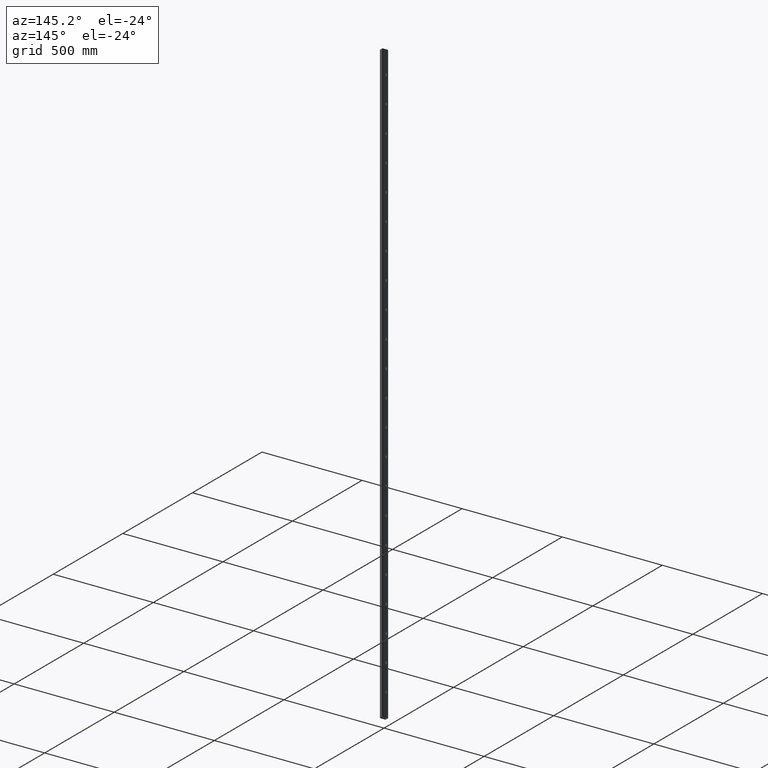
[diagram: clean part render]
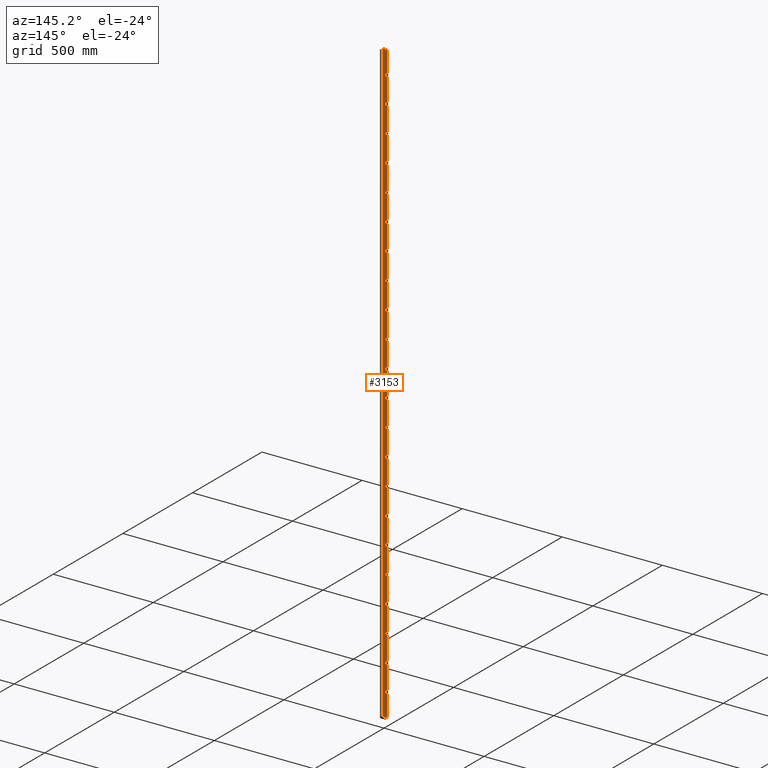
[diagram: same view with one face highlighted and labeled with its STEP entity id]
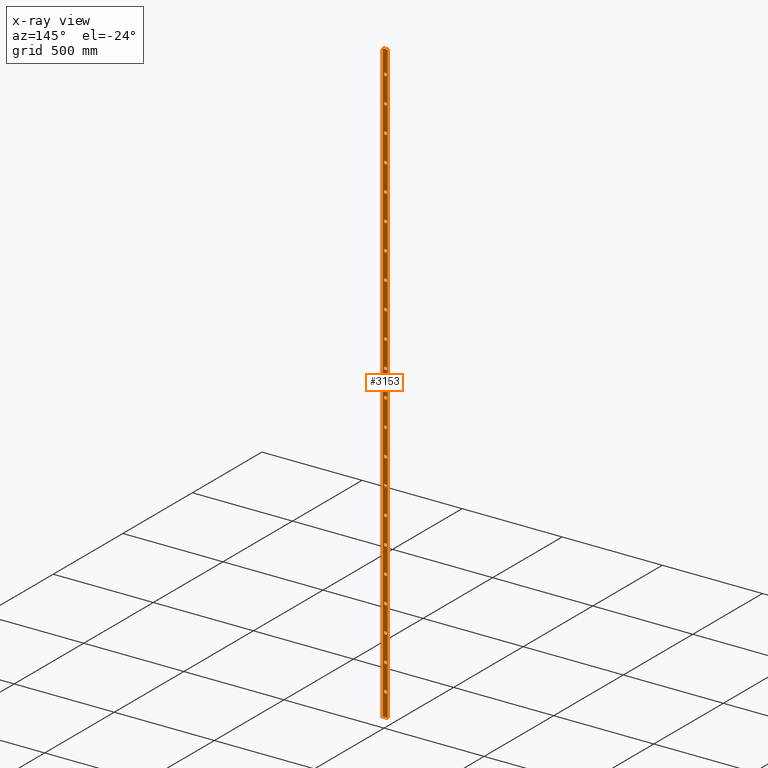
[diagram: x-ray of the same camera — body ghosted, the highlighted face saturated]
A machine part, auxiliary view. The second image highlights one B-rep face of the part: STEP entity #3153.
The next image is the same camera in x-ray: the body ghosted, the highlighted face saturated — about 0% of this face is hidden behind the body in this view.
In plain terms, the highlighted planar face has unit normal (0, -1, 0).
Its self-contained STEP definition (entity closure, byte-faithful):
#21 = ORIENTED_EDGE ( 'NONE', *, *, #8501, .F. ) ;
#57 = VECTOR ( 'NONE', #7857, 1000.000000000000000 ) ;
#121 = EDGE_CURVE ( 'NONE', #2713, #17872, #16919, .T. ) ;
#126 = VERTEX_POINT ( 'NONE', #18658 ) ;
#139 = DIRECTION ( 'NONE',  ( -1.334402673828323446E-16, -0.000000000000000000, -1.000000000000000000 ) ) ;
#174 = EDGE_CURVE ( 'NONE', #8502, #15909, #14428, .T. ) ;
#201 = EDGE_CURVE ( 'NONE', #6277, #854, #13665, .T. ) ;
#220 = ORIENTED_EDGE ( 'NONE', *, *, #7162, .F. ) ;
#228 = LINE ( 'NONE', #6487, #20042 ) ;
#231 = EDGE_CURVE ( 'NONE', #10938, #12329, #8500, .T. ) ;
#243 = EDGE_CURVE ( 'NONE', #11463, #7282, #15924, .T. ) ;
#246 = DIRECTION ( 'NONE',  ( -7.439294906592903578E-14, 0.000000000000000000, 1.000000000000000000 ) ) ;
#323 = VECTOR ( 'NONE', #16814, 1000.000000000000000 ) ;
#357 = EDGE_CURVE ( 'NONE', #16294, #7814, #7241, .T. ) ;
#449 = CARTESIAN_POINT ( 'NONE',  ( 6.499999999995852207, 10.00000000000000178, 204.4999999999550369 ) ) ;
#465 = ORIENTED_EDGE ( 'NONE', *, *, #6332, .F. ) ;
#494 = CARTESIAN_POINT ( 'NONE',  ( 6.500000000003888445, 10.00000000000000178, 983.4999999999998863 ) ) ;
#521 = VECTOR ( 'NONE', #16241, 1000.000000000000000 ) ;
#557 = CARTESIAN_POINT ( 'NONE',  ( -6.499999999996471267, 10.00000000000000178, 864.4999999999997726 ) ) ;
#560 = LINE ( 'NONE', #6180, #6774 ) ;
#583 = VECTOR ( 'NONE', #9760, 1000.000000000000000 ) ;
#669 = VECTOR ( 'NONE', #20494, 1000.000000000000000 ) ;
#675 = ORIENTED_EDGE ( 'NONE', *, *, #4626, .F. ) ;
#751 = VECTOR ( 'NONE', #13379, 1000.000000000000000 ) ;
#789 = LINE ( 'NONE', #18032, #6760 ) ;
#842 = ORIENTED_EDGE ( 'NONE', *, *, #18977, .F. ) ;
#854 = VERTEX_POINT ( 'NONE', #3740 ) ;
#873 = ORIENTED_EDGE ( 'NONE', *, *, #18231, .F. ) ;
#964 = CARTESIAN_POINT ( 'NONE',  ( -6.499999999995550226, 10.00000000000000178, 1128.499999999999773 ) ) ;
#965 = CARTESIAN_POINT ( 'NONE',  ( -6.500000000006407319, 10.00000000000000178, -732.5000000000841283 ) ) ;
#981 = VECTOR ( 'NONE', #16211, 1000.000000000000000 ) ;
#994 = CARTESIAN_POINT ( 'NONE',  ( -6.500000000008756551, 10.00000000000000178, -1115.500000000100954 ) ) ;
#1019 = LINE ( 'NONE', #11818, #16662 ) ;
#1043 = VECTOR ( 'NONE', #9373, 1000.000000000000000 ) ;
#1044 = EDGE_CURVE ( 'NONE', #1782, #10938, #10919, .T. ) ;
#1063 = EDGE_CURVE ( 'NONE', #15936, #7998, #19379, .T. ) ;
#1223 = LINE ( 'NONE', #965, #4448 ) ;
#1239 = LINE ( 'NONE', #7474, #11896 ) ;
#1249 = CARTESIAN_POINT ( 'NONE',  ( -6.500000000003180567, 10.00000000000000178, 191.4999999999551505 ) ) ;
#1258 = DIRECTION ( 'NONE',  ( 1.000000000000000000, 0.000000000000000000, 0.000000000000000000 ) ) ;
#1310 = CARTESIAN_POINT ( 'NONE',  ( -6.500000000005991652, 10.00000000000000178, -323.5000000000674163 ) ) ;
#1341 = DIRECTION ( 'NONE',  ( 1.000000000000000000, 0.000000000000000000, 0.000000000000000000 ) ) ;
#1400 = ORIENTED_EDGE ( 'NONE', *, *, #19971, .F. ) ;
#1443 = ORIENTED_EDGE ( 'NONE', *, *, #16439, .T. ) ;
#1447 = CARTESIAN_POINT ( 'NONE',  ( 6.499999999996774136, 10.00000000000000178, 468.4999999999664055 ) ) ;
#1529 = ORIENTED_EDGE ( 'NONE', *, *, #10089, .F. ) ;
#1548 = ORIENTED_EDGE ( 'NONE', *, *, #3315, .F. ) ;
#1568 = ORIENTED_EDGE ( 'NONE', *, *, #231, .F. ) ;
#1586 = DIRECTION ( 'NONE',  ( -1.000000000000000000, -0.000000000000000000, -0.000000000000000000 ) ) ;
#1589 = CARTESIAN_POINT ( 'NONE',  ( 6.500000000003427481, 10.00000000000000178, 851.4999999999998863 ) ) ;
#1603 = CARTESIAN_POINT ( 'NONE',  ( 6.499999999994881428, 10.00000000000000178, 191.4999999999551505 ) ) ;
#1604 = CARTESIAN_POINT ( 'NONE',  ( -6.500000000005024425, 10.00000000000000178, -336.5000000000673026 ) ) ;
#1616 = VECTOR ( 'NONE', #15195, 1000.000000000000000 ) ;
#1653 = CARTESIAN_POINT ( 'NONE',  ( 11.99999999999998934, 10.00000000000000178, 1500.000000000000000 ) ) ;
#1662 = CARTESIAN_POINT ( 'NONE',  ( 6.499999999994884980, 10.00000000000000178, 191.4999999999551505 ) ) ;
#1672 = CARTESIAN_POINT ( 'NONE',  ( -6.500000000004102496, 10.00000000000000178, -72.50000000005596235 ) ) ;
#1746 = ORIENTED_EDGE ( 'NONE', *, *, #12475, .F. ) ;
#1752 = DIRECTION ( 'NONE',  ( -7.439294906592903578E-14, -0.000000000000000000, -1.000000000000000000 ) ) ;
#1782 = VERTEX_POINT ( 'NONE', #15887 ) ;
#1805 = VECTOR ( 'NONE', #13346, 1000.000000000000000 ) ;
#1832 = CARTESIAN_POINT ( 'NONE',  ( 6.499999999992120081, 10.00000000000000178, -600.5000000000784439 ) ) ;
#1833 = VECTOR ( 'NONE', #16167, 1000.000000000000000 ) ;
#1875 = VERTEX_POINT ( 'NONE', #12967 ) ;
#1901 = EDGE_CURVE ( 'NONE', #2367, #18498, #4802, .T. ) ;
#1957 = CARTESIAN_POINT ( 'NONE',  ( -6.500000000006407319, 10.00000000000000178, -732.5000000000841283 ) ) ;
#2015 = VECTOR ( 'NONE', #16146, 1000.000000000000000 ) ;
#2059 = VERTEX_POINT ( 'NONE', #12188 ) ;
#2064 = FACE_BOUND ( 'NONE', #19463, .T. ) ;
#2102 = DIRECTION ( 'NONE',  ( -1.334402673828323446E-16, -0.000000000000000000, -1.000000000000000000 ) ) ;
#2126 = EDGE_CURVE ( 'NONE', #19678, #8179, #560, .T. ) ;
#2167 = CARTESIAN_POINT ( 'NONE',  ( -6.499999999997393196, 10.00000000000000178, 600.4999999999997726 ) ) ;
#2178 = VERTEX_POINT ( 'NONE', #6725 ) ;
#2231 = EDGE_CURVE ( 'NONE', #3026, #6277, #8508, .T. ) ;
#2247 = LINE ( 'NONE', #1310, #18637 ) ;
#2270 = VERTEX_POINT ( 'NONE', #17635 ) ;
#2288 = FACE_BOUND ( 'NONE', #11215, .T. ) ;
#2299 = EDGE_CURVE ( 'NONE', #13605, #10068, #6008, .T. ) ;
#2322 = DIRECTION ( 'NONE',  ( -1.000000000000000000, -0.000000000000000000, -0.000000000000000000 ) ) ;
#2339 = CARTESIAN_POINT ( 'NONE',  ( 6.500000000002965628, 10.00000000000000178, 719.4999999999998863 ) ) ;
#2364 = DIRECTION ( 'NONE',  ( -7.439294906592903578E-14, 0.000000000000000000, 1.000000000000000000 ) ) ;
#2367 = VERTEX_POINT ( 'NONE', #11827 ) ;
#2409 = VECTOR ( 'NONE', #11583, 1000.000000000000000 ) ;
#2440 = EDGE_CURVE ( 'NONE', #14310, #126, #16926, .T. ) ;
#2463 = CARTESIAN_POINT ( 'NONE',  ( -12.00000000000001421, 10.00000000000000178, 1500.000000000000000 ) ) ;
#2500 = LINE ( 'NONE', #12537, #5523 ) ;
#2519 = FACE_BOUND ( 'NONE', #17161, .T. ) ;
#2536 = DIRECTION ( 'NONE',  ( -1.000000000000000000, -0.000000000000000000, -0.000000000000000000 ) ) ;
#2545 = CARTESIAN_POINT ( 'NONE',  ( 6.499999999990321520, 10.00000000000000178, -1379.500000000112323 ) ) ;
#2647 = EDGE_CURVE ( 'NONE', #16515, #18360, #17173, .T. ) ;
#2690 = LINE ( 'NONE', #13476, #19339 ) ;
#2713 = VERTEX_POINT ( 'NONE', #9416 ) ;
#2761 = FACE_BOUND ( 'NONE', #16245, .T. ) ;
#2791 = ORIENTED_EDGE ( 'NONE', *, *, #8056, .F. ) ;
#2854 = LINE ( 'NONE', #7921, #15760 ) ;
#2856 = CARTESIAN_POINT ( 'NONE',  ( 6.500000000002507328, 10.00000000000000178, 600.4999999999997726 ) ) ;
#2865 = DIRECTION ( 'NONE',  ( -7.439294906592903578E-14, -0.000000000000000000, -1.000000000000000000 ) ) ;
#2882 = VERTEX_POINT ( 'NONE', #8352 ) ;
#2919 = EDGE_CURVE ( 'NONE', #4087, #10482, #9791, .T. ) ;
#2985 = DIRECTION ( 'NONE',  ( -7.439294906592903578E-14, -0.000000000000000000, -1.000000000000000000 ) ) ;
#3001 = EDGE_LOOP ( 'NONE', ( #1443, #6796, #15563, #5588 ) ) ;
#3012 = LINE ( 'NONE', #17686, #17934 ) ;
#3014 = CARTESIAN_POINT ( 'NONE',  ( -6.500000000007789325, 10.00000000000000178, -1128.500000000100954 ) ) ;
#3026 = VERTEX_POINT ( 'NONE', #2167 ) ;
#3040 = CARTESIAN_POINT ( 'NONE',  ( 6.499999999989815258, 10.00000000000000178, -1260.500000000106866 ) ) ;
#3153 = ADVANCED_FACE ( 'NONE', ( #2761, #8037, #2288, #17699, #3285, #2519, #7021, #19180, #2064, #10714, #17453, #5522, #14183, #13423, #13195, #15940, #14927, #18936, #14698, #10488, #6013, #8991, #11706 ), #11974, .F. ) ;
#3154 = VERTEX_POINT ( 'NONE', #16366 ) ;
#3176 = CARTESIAN_POINT ( 'NONE',  ( -6.500000000005529799, 10.00000000000000178, -191.5000000000617320 ) ) ;
#3189 = VECTOR ( 'NONE', #8959, 1000.000000000000000 ) ;
#3204 = CARTESIAN_POINT ( 'NONE',  ( -6.499999999996933120, 10.00000000000000178, 732.4999999999997726 ) ) ;
#3220 = VECTOR ( 'NONE', #19985, 1000.000000000000000 ) ;
#3238 = VECTOR ( 'NONE', #9673, 1000.000000000000000 ) ;
#3241 = VERTEX_POINT ( 'NONE', #4991 ) ;
#3257 = LINE ( 'NONE', #14665, #5262 ) ;
#3285 = FACE_BOUND ( 'NONE', #6841, .T. ) ;
#3290 = VECTOR ( 'NONE', #19471, 1000.000000000000000 ) ;
#3315 = EDGE_CURVE ( 'NONE', #9530, #9576, #7491, .T. ) ;
#3331 = CARTESIAN_POINT ( 'NONE',  ( -6.500000000006912693, 10.00000000000000178, -587.5000000000785576 ) ) ;
#3333 = CARTESIAN_POINT ( 'NONE',  ( -6.500000000009677592, 10.00000000000000178, -1379.500000000112323 ) ) ;
#3353 = CARTESIAN_POINT ( 'NONE',  ( 6.500000000005268674, 10.00000000000000178, 1379.500000000000000 ) ) ;
#3368 = DIRECTION ( 'NONE',  ( 1.000000000000000000, 0.000000000000000000, 0.000000000000000000 ) ) ;
#3369 = LINE ( 'NONE', #1653, #9319 ) ;
#3378 = EDGE_CURVE ( 'NONE', #11782, #6314, #3257, .T. ) ;
#3390 = EDGE_CURVE ( 'NONE', #13767, #10246, #789, .T. ) ;
#3426 = LINE ( 'NONE', #3991, #12563 ) ;
#3468 = EDGE_CURVE ( 'NONE', #2059, #5447, #1019, .T. ) ;
#3517 = ORIENTED_EDGE ( 'NONE', *, *, #20464, .F. ) ;
#3521 = ORIENTED_EDGE ( 'NONE', *, *, #15245, .F. ) ;
#3621 = VERTEX_POINT ( 'NONE', #994 ) ;
#3628 = VERTEX_POINT ( 'NONE', #9131 ) ;
#3640 = EDGE_CURVE ( 'NONE', #15355, #1875, #4004, .T. ) ;
#3665 = VECTOR ( 'NONE', #9297, 1000.000000000000000 ) ;
#3685 = LINE ( 'NONE', #12077, #13331 ) ;
#3697 = VERTEX_POINT ( 'NONE', #4378 ) ;
#3726 = ORIENTED_EDGE ( 'NONE', *, *, #2440, .F. ) ;
#3740 = CARTESIAN_POINT ( 'NONE',  ( 6.500000000002503775, 10.00000000000000178, 587.4999999999998863 ) ) ;
#3814 = CARTESIAN_POINT ( 'NONE',  ( 6.499999999990273558, 10.00000000000000178, -1128.500000000101181 ) ) ;
#3847 = CARTESIAN_POINT ( 'NONE',  ( -6.500000000007373657, 10.00000000000000178, -719.5000000000841283 ) ) ;
#3850 = EDGE_CURVE ( 'NONE', #9897, #6390, #10217, .T. ) ;
#3886 = CARTESIAN_POINT ( 'NONE',  ( 6.499999999989354293, 10.00000000000000178, -1392.500000000112095 ) ) ;
#3913 = AXIS2_PLACEMENT_3D ( 'NONE', #2463, #16983, #18453 ) ;
#3935 = EDGE_CURVE ( 'NONE', #7282, #15936, #4736, .T. ) ;
#3970 = CARTESIAN_POINT ( 'NONE',  ( 6.500000000005272227, 10.00000000000000178, 1392.499999999999773 ) ) ;
#3976 = VERTEX_POINT ( 'NONE', #16363 ) ;
#3991 = CARTESIAN_POINT ( 'NONE',  ( -6.499999999995552002, 10.00000000000000178, 1115.500000000000000 ) ) ;
#4004 = LINE ( 'NONE', #6074, #15155 ) ;
#4087 = VERTEX_POINT ( 'NONE', #16699 ) ;
#4121 = LINE ( 'NONE', #4893, #8836 ) ;
#4135 = DIRECTION ( 'NONE',  ( 1.334402673828323446E-16, 0.000000000000000000, 1.000000000000000000 ) ) ;
#4162 = DIRECTION ( 'NONE',  ( -1.000000000000000000, -0.000000000000000000, -0.000000000000000000 ) ) ;
#4235 = ORIENTED_EDGE ( 'NONE', *, *, #6452, .F. ) ;
#4238 = VERTEX_POINT ( 'NONE', #18025 ) ;
#4256 = EDGE_LOOP ( 'NONE', ( #465, #17819, #7668, #11643 ) ) ;
#4257 = EDGE_CURVE ( 'NONE', #5788, #3154, #5245, .T. ) ;
#4259 = VECTOR ( 'NONE', #9434, 1000.000000000000000 ) ;
#4282 = CARTESIAN_POINT ( 'NONE',  ( -6.500000000006451728, 10.00000000000000178, -455.5000000000728733 ) ) ;
#4286 = LINE ( 'NONE', #13771, #5292 ) ;
#4332 = ORIENTED_EDGE ( 'NONE', *, *, #13790, .F. ) ;
#4378 = CARTESIAN_POINT ( 'NONE',  ( -6.500000000008295586, 10.00000000000000178, -983.5000000000954969 ) ) ;
#4399 = VECTOR ( 'NONE', #10261, 1000.000000000000000 ) ;
#4448 = VECTOR ( 'NONE', #4162, 1000.000000000000000 ) ;
#4506 = VECTOR ( 'NONE', #139, 1000.000000000000000 ) ;
#4527 = CARTESIAN_POINT ( 'NONE',  ( 6.500000000004812151, 10.00000000000000178, 1260.500000000000000 ) ) ;
#4568 = DIRECTION ( 'NONE',  ( -7.439294906592903578E-14, -0.000000000000000000, -1.000000000000000000 ) ) ;
#4570 = EDGE_CURVE ( 'NONE', #18972, #5519, #6720, .T. ) ;
#4576 = VECTOR ( 'NONE', #9647, 1000.000000000000000 ) ;
#4591 = CARTESIAN_POINT ( 'NONE',  ( -6.500000000004147793, 10.00000000000000178, 204.4999999999550369 ) ) ;
#4606 = CARTESIAN_POINT ( 'NONE',  ( -6.499999999996010303, 10.00000000000000178, 996.4999999999998863 ) ) ;
#4626 = EDGE_CURVE ( 'NONE', #15568, #14004, #1239, .T. ) ;
#4644 = DIRECTION ( 'NONE',  ( 1.000000000000000000, 0.000000000000000000, 0.000000000000000000 ) ) ;
#4676 = LINE ( 'NONE', #11107, #6182 ) ;
#4678 = LINE ( 'NONE', #18085, #6921 ) ;
#4712 = CARTESIAN_POINT ( 'NONE',  ( -6.499999999996012079, 10.00000000000000178, 983.4999999999998863 ) ) ;
#4736 = LINE ( 'NONE', #494, #521 ) ;
#4749 = EDGE_LOOP ( 'NONE', ( #18228, #675, #19033, #10819 ) ) ;
#4756 = EDGE_CURVE ( 'NONE', #13240, #13669, #17643, .T. ) ;
#4764 = DIRECTION ( 'NONE',  ( -1.000000000000000000, -0.000000000000000000, -0.000000000000000000 ) ) ;
#4766 = ORIENTED_EDGE ( 'NONE', *, *, #7150, .F. ) ;
#4802 = LINE ( 'NONE', #1832, #583 ) ;
#4818 = DIRECTION ( 'NONE',  ( -1.000000000000000000, -0.000000000000000000, -0.000000000000000000 ) ) ;
#4826 = VERTEX_POINT ( 'NONE', #5590 ) ;
#4827 = ORIENTED_EDGE ( 'NONE', *, *, #4570, .F. ) ;
#4864 = DIRECTION ( 'NONE',  ( -1.000000000000000000, -0.000000000000000000, -0.000000000000000000 ) ) ;
#4868 = CARTESIAN_POINT ( 'NONE',  ( -6.500000000002258638, 10.00000000000000178, 455.4999999999664624 ) ) ;
#4893 = CARTESIAN_POINT ( 'NONE',  ( -6.500000000005945466, 10.00000000000000178, -600.5000000000784439 ) ) ;
#4914 = CARTESIAN_POINT ( 'NONE',  ( 6.500000000004810374, 10.00000000000000178, 1247.500000000000000 ) ) ;
#4960 = LINE ( 'NONE', #19364, #18109 ) ;
#4964 = CARTESIAN_POINT ( 'NONE',  ( -6.500000000004608758, 10.00000000000000178, 72.49999999994938094 ) ) ;
#4991 = CARTESIAN_POINT ( 'NONE',  ( -6.499999999996933120, 10.00000000000000178, 732.4999999999997726 ) ) ;
#5005 = ORIENTED_EDGE ( 'NONE', *, *, #8131, .F. ) ;
#5007 = CARTESIAN_POINT ( 'NONE',  ( 6.499999999989350741, 10.00000000000000178, -1392.500000000111868 ) ) ;
#5088 = CARTESIAN_POINT ( 'NONE',  ( 6.499999999995342392, 10.00000000000000178, 323.4999999999608349 ) ) ;
#5144 = LINE ( 'NONE', #4591, #17554 ) ;
#5175 = DIRECTION ( 'NONE',  ( -1.334402673828323446E-16, -0.000000000000000000, -1.000000000000000000 ) ) ;
#5188 = VERTEX_POINT ( 'NONE', #3333 ) ;
#5214 = CARTESIAN_POINT ( 'NONE',  ( -6.500000000003225864, 10.00000000000000178, 468.4999999999664055 ) ) ;
#5238 = EDGE_CURVE ( 'NONE', #6314, #17046, #8204, .T. ) ;
#5245 = LINE ( 'NONE', #10240, #15132 ) ;
#5262 = VECTOR ( 'NONE', #11550, 1000.000000000000000 ) ;
#5292 = VECTOR ( 'NONE', #16985, 1000.000000000000000 ) ;
#5314 = EDGE_CURVE ( 'NONE', #3628, #2882, #16850, .T. ) ;
#5364 = CARTESIAN_POINT ( 'NONE',  ( -6.500000000008710366, 10.00000000000000178, -1392.500000000112095 ) ) ;
#5447 = VERTEX_POINT ( 'NONE', #4527 ) ;
#5464 = EDGE_CURVE ( 'NONE', #3976, #16846, #13118, .T. ) ;
#5519 = VERTEX_POINT ( 'NONE', #13363 ) ;
#5522 = FACE_BOUND ( 'NONE', #16941, .T. ) ;
#5523 = VECTOR ( 'NONE', #14202, 1000.000000000000000 ) ;
#5588 = ORIENTED_EDGE ( 'NONE', *, *, #19192, .T. ) ;
#5590 = CARTESIAN_POINT ( 'NONE',  ( 6.499999999991704414, 10.00000000000000178, -983.5000000000954969 ) ) ;
#5659 = DIRECTION ( 'NONE',  ( 1.000000000000000000, 0.000000000000000000, 0.000000000000000000 ) ) ;
#5671 = VERTEX_POINT ( 'NONE', #12439 ) ;
#5769 = EDGE_CURVE ( 'NONE', #126, #8839, #4676, .T. ) ;
#5788 = VERTEX_POINT ( 'NONE', #12678 ) ;
#5789 = CARTESIAN_POINT ( 'NONE',  ( 6.500000000004345857, 10.00000000000000178, 1115.500000000000000 ) ) ;
#5820 = ORIENTED_EDGE ( 'NONE', *, *, #174, .F. ) ;
#5851 = LINE ( 'NONE', #6040, #13755 ) ;
#5852 = DIRECTION ( 'NONE',  ( 1.000000000000000000, 0.000000000000000000, 0.000000000000000000 ) ) ;
#5881 = DIRECTION ( 'NONE',  ( -7.439294906592903578E-14, -0.000000000000000000, -1.000000000000000000 ) ) ;
#5966 = CARTESIAN_POINT ( 'NONE',  ( -12.00000000000001421, 10.00000000000000178, 1500.000000000000000 ) ) ;
#5969 = EDGE_CURVE ( 'NONE', #18907, #16515, #4960, .T. ) ;
#5972 = DIRECTION ( 'NONE',  ( -1.000000000000000000, -0.000000000000000000, -0.000000000000000000 ) ) ;
#5997 = CARTESIAN_POINT ( 'NONE',  ( 6.500000000003426592, 10.00000000000000178, 851.4999999999998863 ) ) ;
#6003 = VERTEX_POINT ( 'NONE', #14116 ) ;
#6008 = LINE ( 'NONE', #17704, #1805 ) ;
#6013 = FACE_BOUND ( 'NONE', #20415, .T. ) ;
#6040 = CARTESIAN_POINT ( 'NONE',  ( 6.499999999990737187, 10.00000000000000178, -996.5000000000953833 ) ) ;
#6044 = EDGE_CURVE ( 'NONE', #13012, #17887, #13577, .T. ) ;
#6074 = CARTESIAN_POINT ( 'NONE',  ( 6.499999999994423128, 10.00000000000000178, 59.49999999994948041 ) ) ;
#6111 = EDGE_CURVE ( 'NONE', #20122, #14680, #6685, .T. ) ;
#6180 = CARTESIAN_POINT ( 'NONE',  ( -6.499999999994630073, 10.00000000000000178, 1379.500000000000000 ) ) ;
#6182 = VECTOR ( 'NONE', #9684, 1000.000000000000000 ) ;
#6184 = EDGE_CURVE ( 'NONE', #5519, #3241, #9904, .T. ) ;
#6203 = VECTOR ( 'NONE', #14753, 1000.000000000000000 ) ;
#6264 = EDGE_CURVE ( 'NONE', #6988, #9530, #3685, .T. ) ;
#6277 = VERTEX_POINT ( 'NONE', #2856 ) ;
#6279 = ORIENTED_EDGE ( 'NONE', *, *, #13269, .F. ) ;
#6314 = VERTEX_POINT ( 'NONE', #7603 ) ;
#6330 = DIRECTION ( 'NONE',  ( -7.439294906592903578E-14, -0.000000000000000000, -1.000000000000000000 ) ) ;
#6332 = EDGE_CURVE ( 'NONE', #854, #6443, #228, .T. ) ;
#6390 = VERTEX_POINT ( 'NONE', #4964 ) ;
#6443 = VERTEX_POINT ( 'NONE', #12902 ) ;
#6452 = EDGE_CURVE ( 'NONE', #7029, #20122, #9144, .T. ) ;
#6487 = CARTESIAN_POINT ( 'NONE',  ( -6.499999999997394973, 10.00000000000000178, 587.4999999999998863 ) ) ;
#6559 = EDGE_CURVE ( 'NONE', #18667, #17296, #18583, .T. ) ;
#6590 = VECTOR ( 'NONE', #1341, 1000.000000000000000 ) ;
#6593 = ORIENTED_EDGE ( 'NONE', *, *, #3390, .F. ) ;
#6610 = ORIENTED_EDGE ( 'NONE', *, *, #19566, .F. ) ;
#6655 = ORIENTED_EDGE ( 'NONE', *, *, #7890, .F. ) ;
#6685 = LINE ( 'NONE', #7536, #13846 ) ;
#6694 = CARTESIAN_POINT ( 'NONE',  ( -6.500000000009677592, 10.00000000000000178, -1379.500000000112323 ) ) ;
#6711 = DIRECTION ( 'NONE',  ( -1.000000000000000000, -0.000000000000000000, -0.000000000000000000 ) ) ;
#6720 = LINE ( 'NONE', #13317, #751 ) ;
#6725 = CARTESIAN_POINT ( 'NONE',  ( 6.499999999993500310, 10.00000000000000178, -204.5000000000616183 ) ) ;
#6744 = CARTESIAN_POINT ( 'NONE',  ( -6.500000000008250289, 10.00000000000000178, -1260.500000000106866 ) ) ;
#6760 = VECTOR ( 'NONE', #9865, 1000.000000000000000 ) ;
#6774 = VECTOR ( 'NONE', #8067, 1000.000000000000000 ) ;
#6786 = ORIENTED_EDGE ( 'NONE', *, *, #3378, .F. ) ;
#6789 = ORIENTED_EDGE ( 'NONE', *, *, #6044, .F. ) ;
#6796 = ORIENTED_EDGE ( 'NONE', *, *, #2299, .F. ) ;
#6822 = CARTESIAN_POINT ( 'NONE',  ( -6.499999999995552002, 10.00000000000000178, 1115.500000000000000 ) ) ;
#6841 = EDGE_LOOP ( 'NONE', ( #8846, #1548, #19832, #4332 ) ) ;
#6917 = LINE ( 'NONE', #18793, #3665 ) ;
#6921 = VECTOR ( 'NONE', #6711, 1000.000000000000000 ) ;
#6970 = EDGE_CURVE ( 'NONE', #17872, #4087, #13807, .T. ) ;
#6988 = VERTEX_POINT ( 'NONE', #557 ) ;
#7021 = FACE_BOUND ( 'NONE', #4256, .T. ) ;
#7029 = VERTEX_POINT ( 'NONE', #18445 ) ;
#7071 = CARTESIAN_POINT ( 'NONE',  ( 6.500000000004350298, 10.00000000000000178, 1128.499999999999773 ) ) ;
#7137 = CARTESIAN_POINT ( 'NONE',  ( -6.500000000005991652, 10.00000000000000178, -323.5000000000674163 ) ) ;
#7150 = EDGE_CURVE ( 'NONE', #8179, #13767, #17062, .T. ) ;
#7162 = EDGE_CURVE ( 'NONE', #3154, #18022, #8400, .T. ) ;
#7170 = ORIENTED_EDGE ( 'NONE', *, *, #3850, .F. ) ;
#7212 = VECTOR ( 'NONE', #15640, 1000.000000000000000 ) ;
#7232 = VECTOR ( 'NONE', #20307, 1000.000000000000000 ) ;
#7241 = LINE ( 'NONE', #1672, #19147 ) ;
#7252 = LINE ( 'NONE', #15027, #14159 ) ;
#7257 = CARTESIAN_POINT ( 'NONE',  ( -6.499999999996473043, 10.00000000000000178, 851.4999999999998863 ) ) ;
#7282 = VERTEX_POINT ( 'NONE', #9794 ) ;
#7293 = DIRECTION ( 'NONE',  ( 1.000000000000000000, 0.000000000000000000, 0.000000000000000000 ) ) ;
#7318 = ORIENTED_EDGE ( 'NONE', *, *, #13525, .F. ) ;
#7346 = VECTOR ( 'NONE', #16849, 1000.000000000000000 ) ;
#7391 = CARTESIAN_POINT ( 'NONE',  ( -6.499999999996934008, 10.00000000000000178, 719.4999999999998863 ) ) ;
#7393 = CARTESIAN_POINT ( 'NONE',  ( -6.500000000006407319, 10.00000000000000178, -732.5000000000841283 ) ) ;
#7408 = DIRECTION ( 'NONE',  ( 1.000000000000000000, 0.000000000000000000, 0.000000000000000000 ) ) ;
#7417 = CARTESIAN_POINT ( 'NONE',  ( -6.499999999995550226, 10.00000000000000178, 1128.499999999999773 ) ) ;
#7418 = LINE ( 'NONE', #10044, #3189 ) ;
#7461 = CARTESIAN_POINT ( 'NONE',  ( -6.500000000007789325, 10.00000000000000178, -1128.500000000100954 ) ) ;
#7474 = CARTESIAN_POINT ( 'NONE',  ( 6.499999999991658228, 10.00000000000000178, -732.5000000000841283 ) ) ;
#7491 = LINE ( 'NONE', #1589, #4506 ) ;
#7501 = VECTOR ( 'NONE', #13976, 1000.000000000000000 ) ;
#7536 = CARTESIAN_POINT ( 'NONE',  ( 6.499999999995345057, 10.00000000000000178, 323.4999999999608349 ) ) ;
#7552 = LINE ( 'NONE', #7657, #17221 ) ;
#7565 = VERTEX_POINT ( 'NONE', #14225 ) ;
#7594 = CARTESIAN_POINT ( 'NONE',  ( 6.499999999992625455, 10.00000000000000178, -719.5000000000841283 ) ) ;
#7603 = CARTESIAN_POINT ( 'NONE',  ( 6.499999999993039346, 10.00000000000000178, -336.5000000000673026 ) ) ;
#7657 = CARTESIAN_POINT ( 'NONE',  ( -6.499999999996012079, 10.00000000000000178, 983.4999999999998863 ) ) ;
#7660 = LINE ( 'NONE', #12052, #13852 ) ;
#7668 = ORIENTED_EDGE ( 'NONE', *, *, #2231, .F. ) ;
#7728 = VERTEX_POINT ( 'NONE', #449 ) ;
#7791 = ORIENTED_EDGE ( 'NONE', *, *, #19287, .F. ) ;
#7814 = VERTEX_POINT ( 'NONE', #19822 ) ;
#7829 = VERTEX_POINT ( 'NONE', #14980 ) ;
#7857 = DIRECTION ( 'NONE',  ( 1.000000000000000000, 0.000000000000000000, 0.000000000000000000 ) ) ;
#7890 = EDGE_CURVE ( 'NONE', #13450, #18907, #19278, .T. ) ;
#7921 = CARTESIAN_POINT ( 'NONE',  ( -6.500000000004102496, 10.00000000000000178, -72.50000000005596235 ) ) ;
#7978 = VECTOR ( 'NONE', #8259, 1000.000000000000000 ) ;
#7980 = VERTEX_POINT ( 'NONE', #9378 ) ;
#7998 = VERTEX_POINT ( 'NONE', #4712 ) ;
#8028 = ORIENTED_EDGE ( 'NONE', *, *, #14866, .F. ) ;
#8037 = FACE_BOUND ( 'NONE', #14861, .T. ) ;
#8045 = ORIENTED_EDGE ( 'NONE', *, *, #17843, .F. ) ;
#8056 = EDGE_CURVE ( 'NONE', #17046, #19858, #8129, .T. ) ;
#8065 = DIRECTION ( 'NONE',  ( 1.000000000000000000, 0.000000000000000000, 0.000000000000000000 ) ) ;
#8067 = DIRECTION ( 'NONE',  ( 1.334402673828323446E-16, 0.000000000000000000, 1.000000000000000000 ) ) ;
#8129 = LINE ( 'NONE', #14549, #17806 ) ;
#8131 = EDGE_CURVE ( 'NONE', #10482, #2713, #15532, .T. ) ;
#8135 = LINE ( 'NONE', #3014, #14545 ) ;
#8179 = VERTEX_POINT ( 'NONE', #15040 ) ;
#8198 = CARTESIAN_POINT ( 'NONE',  ( -6.500000000002719602, 10.00000000000000178, 323.4999999999608349 ) ) ;
#8204 = LINE ( 'NONE', #1604, #20572 ) ;
#8218 = VECTOR ( 'NONE', #2536, 1000.000000000000000 ) ;
#8224 = EDGE_CURVE ( 'NONE', #18022, #7829, #12300, .T. ) ;
#8259 = DIRECTION ( 'NONE',  ( -7.439294906592903578E-14, 0.000000000000000000, 1.000000000000000000 ) ) ;
#8352 = CARTESIAN_POINT ( 'NONE',  ( -6.500000000007328360, 10.00000000000000178, -996.5000000000953833 ) ) ;
#8388 = EDGE_LOOP ( 'NONE', ( #6789, #7318, #873, #10004 ) ) ;
#8400 = LINE ( 'NONE', #12307, #15305 ) ;
#8448 = LINE ( 'NONE', #12815, #12905 ) ;
#8500 = LINE ( 'NONE', #3176, #57 ) ;
#8501 = EDGE_CURVE ( 'NONE', #9298, #14310, #19513, .T. ) ;
#8502 = VERTEX_POINT ( 'NONE', #5214 ) ;
#8508 = LINE ( 'NONE', #14476, #10486 ) ;
#8532 = LINE ( 'NONE', #3204, #9017 ) ;
#8565 = ORIENTED_EDGE ( 'NONE', *, *, #17828, .F. ) ;
#8582 = ORIENTED_EDGE ( 'NONE', *, *, #357, .F. ) ;
#8597 = VERTEX_POINT ( 'NONE', #13157 ) ;
#8665 = CARTESIAN_POINT ( 'NONE',  ( 6.499999999993963051, 10.00000000000000178, -72.50000000005596235 ) ) ;
#8739 = ORIENTED_EDGE ( 'NONE', *, *, #6559, .F. ) ;
#8831 = DIRECTION ( 'NONE',  ( 1.334402673828323446E-16, 0.000000000000000000, 1.000000000000000000 ) ) ;
#8836 = VECTOR ( 'NONE', #4818, 1000.000000000000000 ) ;
#8839 = VERTEX_POINT ( 'NONE', #4282 ) ;
#8846 = ORIENTED_EDGE ( 'NONE', *, *, #13594, .F. ) ;
#8959 = DIRECTION ( 'NONE',  ( -1.000000000000000000, -0.000000000000000000, -0.000000000000000000 ) ) ;
#8991 = FACE_BOUND ( 'NONE', #16940, .T. ) ;
#8997 = ORIENTED_EDGE ( 'NONE', *, *, #1901, .F. ) ;
#9017 = VECTOR ( 'NONE', #20324, 1000.000000000000000 ) ;
#9031 = CARTESIAN_POINT ( 'NONE',  ( 6.499999999992577493, 10.00000000000000178, -468.5000000000727596 ) ) ;
#9039 = EDGE_CURVE ( 'NONE', #6443, #3026, #11293, .T. ) ;
#9069 = CARTESIAN_POINT ( 'NONE',  ( -6.499999999995552002, 10.00000000000000178, 1115.500000000000000 ) ) ;
#9081 = DIRECTION ( 'NONE',  ( 1.000000000000000000, 0.000000000000000000, 0.000000000000000000 ) ) ;
#9131 = CARTESIAN_POINT ( 'NONE',  ( 6.499999999990735411, 10.00000000000000178, -996.5000000000951559 ) ) ;
#9144 = LINE ( 'NONE', #11329, #2409 ) ;
#9177 = CARTESIAN_POINT ( 'NONE',  ( -6.500000000002719602, 10.00000000000000178, 323.4999999999608349 ) ) ;
#9297 = DIRECTION ( 'NONE',  ( 1.000000000000000000, 0.000000000000000000, 0.000000000000000000 ) ) ;
#9298 = VERTEX_POINT ( 'NONE', #11946 ) ;
#9318 = ORIENTED_EDGE ( 'NONE', *, *, #6970, .F. ) ;
#9319 = VECTOR ( 'NONE', #12636, 1000.000000000000000 ) ;
#9373 = DIRECTION ( 'NONE',  ( -7.439294906592903578E-14, 0.000000000000000000, 1.000000000000000000 ) ) ;
#9378 = CARTESIAN_POINT ( 'NONE',  ( 11.99999999999998934, 10.00000000000000178, -1500.000000000000000 ) ) ;
#9416 = CARTESIAN_POINT ( 'NONE',  ( -6.500000000009217516, 10.00000000000000178, -1247.500000000106866 ) ) ;
#9427 = LINE ( 'NONE', #6694, #16129 ) ;
#9434 = DIRECTION ( 'NONE',  ( -1.334402673828323446E-16, -0.000000000000000000, -1.000000000000000000 ) ) ;
#9441 = EDGE_CURVE ( 'NONE', #13669, #15568, #19938, .T. ) ;
#9451 = CARTESIAN_POINT ( 'NONE',  ( -6.500000000003641532, 10.00000000000000178, 59.49999999994948041 ) ) ;
#9463 = CARTESIAN_POINT ( 'NONE',  ( 6.499999999995806910, 10.00000000000000178, 455.4999999999664624 ) ) ;
#9490 = VECTOR ( 'NONE', #5175, 1000.000000000000000 ) ;
#9512 = ORIENTED_EDGE ( 'NONE', *, *, #1044, .F. ) ;
#9530 = VERTEX_POINT ( 'NONE', #15554 ) ;
#9576 = VERTEX_POINT ( 'NONE', #5997 ) ;
#9647 = DIRECTION ( 'NONE',  ( -1.000000000000000000, -0.000000000000000000, -0.000000000000000000 ) ) ;
#9673 = DIRECTION ( 'NONE',  ( -7.439294906592903578E-14, 0.000000000000000000, 1.000000000000000000 ) ) ;
#9679 = CARTESIAN_POINT ( 'NONE',  ( -6.500000000003180567, 10.00000000000000178, 191.4999999999551505 ) ) ;
#9684 = DIRECTION ( 'NONE',  ( -7.439294906592903578E-14, 0.000000000000000000, 1.000000000000000000 ) ) ;
#9694 = VECTOR ( 'NONE', #11312, 1000.000000000000000 ) ;
#9735 = CARTESIAN_POINT ( 'NONE',  ( 6.500000000002505551, 10.00000000000000178, 587.4999999999998863 ) ) ;
#9749 = EDGE_LOOP ( 'NONE', ( #3726, #21, #14514, #11471 ) ) ;
#9760 = DIRECTION ( 'NONE',  ( -7.439294906592903578E-14, -0.000000000000000000, -1.000000000000000000 ) ) ;
#9791 = LINE ( 'NONE', #6744, #1833 ) ;
#9794 = CARTESIAN_POINT ( 'NONE',  ( 6.500000000003890221, 10.00000000000000178, 996.4999999999998863 ) ) ;
#9803 = ORIENTED_EDGE ( 'NONE', *, *, #12177, .F. ) ;
#9858 = VERTEX_POINT ( 'NONE', #9177 ) ;
#9861 = CARTESIAN_POINT ( 'NONE',  ( -6.499999999996473043, 10.00000000000000178, 851.4999999999998863 ) ) ;
#9863 = CARTESIAN_POINT ( 'NONE',  ( -6.500000000008295586, 10.00000000000000178, -983.5000000000954969 ) ) ;
#9865 = DIRECTION ( 'NONE',  ( -1.334402673828323446E-16, -0.000000000000000000, -1.000000000000000000 ) ) ;
#9897 = VERTEX_POINT ( 'NONE', #14984 ) ;
#9904 = LINE ( 'NONE', #7391, #10624 ) ;
#9933 = CARTESIAN_POINT ( 'NONE',  ( -6.499999999994630073, 10.00000000000000178, 1379.500000000000000 ) ) ;
#9941 = VECTOR ( 'NONE', #5972, 1000.000000000000000 ) ;
#10004 = ORIENTED_EDGE ( 'NONE', *, *, #10029, .F. ) ;
#10029 = EDGE_CURVE ( 'NONE', #17887, #8597, #19687, .T. ) ;
#10044 = CARTESIAN_POINT ( 'NONE',  ( -12.00000000000001421, 10.00000000000000178, -1500.000000000000000 ) ) ;
#10061 = EDGE_LOOP ( 'NONE', ( #16521, #18053, #10287, #18729 ) ) ;
#10063 = ORIENTED_EDGE ( 'NONE', *, *, #10577, .F. ) ;
#10064 = LINE ( 'NONE', #13519, #1616 ) ;
#10068 = VERTEX_POINT ( 'NONE', #15822 ) ;
#10082 = ORIENTED_EDGE ( 'NONE', *, *, #3640, .F. ) ;
#10086 = ORIENTED_EDGE ( 'NONE', *, *, #5969, .F. ) ;
#10089 = EDGE_CURVE ( 'NONE', #7998, #11463, #7552, .T. ) ;
#10143 = ORIENTED_EDGE ( 'NONE', *, *, #20585, .F. ) ;
#10217 = LINE ( 'NONE', #9451, #17151 ) ;
#10240 = CARTESIAN_POINT ( 'NONE',  ( -6.500000000006867396, 10.00000000000000178, -864.5000000000895852 ) ) ;
#10246 = VERTEX_POINT ( 'NONE', #3353 ) ;
#10261 = DIRECTION ( 'NONE',  ( -7.439294906592903578E-14, -0.000000000000000000, -1.000000000000000000 ) ) ;
#10277 = LINE ( 'NONE', #15287, #12740 ) ;
#10282 = CARTESIAN_POINT ( 'NONE',  ( 6.499999999992120081, 10.00000000000000178, -600.5000000000784439 ) ) ;
#10287 = ORIENTED_EDGE ( 'NONE', *, *, #12335, .F. ) ;
#10348 = DIRECTION ( 'NONE',  ( -7.439294906592903578E-14, -0.000000000000000000, -1.000000000000000000 ) ) ;
#10361 = EDGE_CURVE ( 'NONE', #17296, #2270, #19609, .T. ) ;
#10482 = VERTEX_POINT ( 'NONE', #13694 ) ;
#10486 = VECTOR ( 'NONE', #16287, 1000.000000000000000 ) ;
#10488 = FACE_BOUND ( 'NONE', #11968, .T. ) ;
#10536 = EDGE_CURVE ( 'NONE', #2882, #3697, #4286, .T. ) ;
#10547 = EDGE_CURVE ( 'NONE', #3621, #3976, #6917, .T. ) ;
#10577 = EDGE_CURVE ( 'NONE', #7814, #17633, #2854, .T. ) ;
#10624 = VECTOR ( 'NONE', #8831, 1000.000000000000000 ) ;
#10704 = VECTOR ( 'NONE', #20584, 1000.000000000000000 ) ;
#10714 = FACE_BOUND ( 'NONE', #8388, .T. ) ;
#10777 = CARTESIAN_POINT ( 'NONE',  ( -6.500000000007373657, 10.00000000000000178, -719.5000000000841283 ) ) ;
#10819 = ORIENTED_EDGE ( 'NONE', *, *, #4756, .F. ) ;
#10868 = DIRECTION ( 'NONE',  ( -7.439294906592903578E-14, 0.000000000000000000, 1.000000000000000000 ) ) ;
#10919 = LINE ( 'NONE', #19080, #7978 ) ;
#10938 = VERTEX_POINT ( 'NONE', #15851 ) ;
#11072 = VECTOR ( 'NONE', #1752, 1000.000000000000000 ) ;
#11107 = CARTESIAN_POINT ( 'NONE',  ( -6.500000000005484502, 10.00000000000000178, -468.5000000000727596 ) ) ;
#11113 = VECTOR ( 'NONE', #9081, 1000.000000000000000 ) ;
#11137 = CARTESIAN_POINT ( 'NONE',  ( 6.499999999996312283, 10.00000000000000178, 336.4999999999607212 ) ) ;
#11215 = EDGE_LOOP ( 'NONE', ( #20363, #10086, #6655, #13754 ) ) ;
#11293 = LINE ( 'NONE', #15926, #12514 ) ;
#11312 = DIRECTION ( 'NONE',  ( -1.000000000000000000, -0.000000000000000000, -0.000000000000000000 ) ) ;
#11329 = CARTESIAN_POINT ( 'NONE',  ( -6.500000000003686829, 10.00000000000000178, 336.4999999999607212 ) ) ;
#11369 = DIRECTION ( 'NONE',  ( -7.439294906592903578E-14, 0.000000000000000000, 1.000000000000000000 ) ) ;
#11385 = CARTESIAN_POINT ( 'NONE',  ( -6.500000000005945466, 10.00000000000000178, -600.5000000000784439 ) ) ;
#11388 = DIRECTION ( 'NONE',  ( -1.000000000000000000, -0.000000000000000000, -0.000000000000000000 ) ) ;
#11403 = VECTOR ( 'NONE', #13294, 1000.000000000000000 ) ;
#11463 = VERTEX_POINT ( 'NONE', #4606 ) ;
#11471 = ORIENTED_EDGE ( 'NONE', *, *, #5769, .F. ) ;
#11544 = LINE ( 'NONE', #5966, #7346 ) ;
#11550 = DIRECTION ( 'NONE',  ( -7.439294906592903578E-14, -0.000000000000000000, -1.000000000000000000 ) ) ;
#11563 = ORIENTED_EDGE ( 'NONE', *, *, #13049, .F. ) ;
#11583 = DIRECTION ( 'NONE',  ( 1.000000000000000000, 0.000000000000000000, 0.000000000000000000 ) ) ;
#11643 = ORIENTED_EDGE ( 'NONE', *, *, #9039, .F. ) ;
#11706 = FACE_OUTER_BOUND ( 'NONE', #3001, .T. ) ;
#11707 = LINE ( 'NONE', #9863, #3290 ) ;
#11765 = DIRECTION ( 'NONE',  ( -1.000000000000000000, -0.000000000000000000, -0.000000000000000000 ) ) ;
#11782 = VERTEX_POINT ( 'NONE', #15179 ) ;
#11818 = CARTESIAN_POINT ( 'NONE',  ( -6.499999999995088373, 10.00000000000000178, 1260.500000000000000 ) ) ;
#11827 = CARTESIAN_POINT ( 'NONE',  ( 6.499999999993086419, 10.00000000000000178, -587.5000000000785576 ) ) ;
#11850 = LINE ( 'NONE', #11385, #15577 ) ;
#11896 = VECTOR ( 'NONE', #5881, 1000.000000000000000 ) ;
#11940 = EDGE_CURVE ( 'NONE', #2178, #1782, #2500, .T. ) ;
#11946 = CARTESIAN_POINT ( 'NONE',  ( 6.499999999993547384, 10.00000000000000178, -455.5000000000728733 ) ) ;
#11968 = EDGE_LOOP ( 'NONE', ( #8565, #16513, #12012, #1746 ) ) ;
#11974 = PLANE ( 'NONE',  #3913 ) ;
#12012 = ORIENTED_EDGE ( 'NONE', *, *, #10547, .F. ) ;
#12052 = CARTESIAN_POINT ( 'NONE',  ( -6.500000000005069722, 10.00000000000000178, -59.50000000005606182 ) ) ;
#12077 = CARTESIAN_POINT ( 'NONE',  ( -6.499999999996471267, 10.00000000000000178, 864.4999999999997726 ) ) ;
#12087 = VECTOR ( 'NONE', #7293, 1000.000000000000000 ) ;
#12108 = EDGE_CURVE ( 'NONE', #8839, #9298, #7252, .T. ) ;
#12158 = LINE ( 'NONE', #8198, #3238 ) ;
#12177 = EDGE_CURVE ( 'NONE', #10246, #19678, #3012, .T. ) ;
#12188 = CARTESIAN_POINT ( 'NONE',  ( -6.499999999995088373, 10.00000000000000178, 1260.500000000000000 ) ) ;
#12220 = LINE ( 'NONE', #9463, #17471 ) ;
#12268 = EDGE_LOOP ( 'NONE', ( #16803, #842, #1568, #9512 ) ) ;
#12300 = LINE ( 'NONE', #16929, #13051 ) ;
#12307 = CARTESIAN_POINT ( 'NONE',  ( -6.500000000006867396, 10.00000000000000178, -864.5000000000895852 ) ) ;
#12329 = VERTEX_POINT ( 'NONE', #16212 ) ;
#12335 = EDGE_CURVE ( 'NONE', #3697, #4826, #11707, .T. ) ;
#12439 = CARTESIAN_POINT ( 'NONE',  ( -6.500000000007789325, 10.00000000000000178, -1128.500000000100954 ) ) ;
#12475 = EDGE_CURVE ( 'NONE', #5671, #3621, #17701, .T. ) ;
#12514 = VECTOR ( 'NONE', #14459, 1000.000000000000000 ) ;
#12516 = ORIENTED_EDGE ( 'NONE', *, *, #13072, .F. ) ;
#12537 = CARTESIAN_POINT ( 'NONE',  ( -6.500000000004562573, 10.00000000000000178, -204.5000000000616183 ) ) ;
#12563 = VECTOR ( 'NONE', #4135, 1000.000000000000000 ) ;
#12632 = LINE ( 'NONE', #7257, #3220 ) ;
#12636 = DIRECTION ( 'NONE',  ( -0.000000000000000000, -0.000000000000000000, -1.000000000000000000 ) ) ;
#12666 = DIRECTION ( 'NONE',  ( -1.000000000000000000, -0.000000000000000000, -0.000000000000000000 ) ) ;
#12678 = CARTESIAN_POINT ( 'NONE',  ( 6.499999999991197264, 10.00000000000000178, -864.5000000000893579 ) ) ;
#12717 = ORIENTED_EDGE ( 'NONE', *, *, #14008, .F. ) ;
#12737 = CARTESIAN_POINT ( 'NONE',  ( -6.499999999996010303, 10.00000000000000178, 996.4999999999998863 ) ) ;
#12740 = VECTOR ( 'NONE', #7408, 1000.000000000000000 ) ;
#12776 = EDGE_CURVE ( 'NONE', #18710, #18972, #19634, .T. ) ;
#12815 = CARTESIAN_POINT ( 'NONE',  ( 6.499999999991198152, 10.00000000000000178, -864.5000000000895852 ) ) ;
#12841 = CARTESIAN_POINT ( 'NONE',  ( -6.499999999995090150, 10.00000000000000178, 1247.500000000000000 ) ) ;
#12860 = CARTESIAN_POINT ( 'NONE',  ( 6.499999999990782484, 10.00000000000000178, -1247.500000000106866 ) ) ;
#12902 = CARTESIAN_POINT ( 'NONE',  ( -6.499999999997394973, 10.00000000000000178, 587.4999999999998863 ) ) ;
#12905 = VECTOR ( 'NONE', #13216, 1000.000000000000000 ) ;
#12967 = CARTESIAN_POINT ( 'NONE',  ( 6.499999999994423128, 10.00000000000000178, 59.49999999994948041 ) ) ;
#12968 = VECTOR ( 'NONE', #15422, 1000.000000000000000 ) ;
#13012 = VERTEX_POINT ( 'NONE', #1603 ) ;
#13049 = EDGE_CURVE ( 'NONE', #19858, #11782, #2247, .T. ) ;
#13051 = VECTOR ( 'NONE', #5852, 1000.000000000000000 ) ;
#13072 = EDGE_CURVE ( 'NONE', #2270, #5188, #17663, .T. ) ;
#13118 = LINE ( 'NONE', #17985, #11403 ) ;
#13157 = CARTESIAN_POINT ( 'NONE',  ( -6.500000000004147793, 10.00000000000000178, 204.4999999999550369 ) ) ;
#13161 = EDGE_CURVE ( 'NONE', #9858, #7029, #12158, .T. ) ;
#13171 = ORIENTED_EDGE ( 'NONE', *, *, #6184, .F. ) ;
#13184 = ORIENTED_EDGE ( 'NONE', *, *, #16921, .F. ) ;
#13195 = FACE_BOUND ( 'NONE', #9749, .T. ) ;
#13216 = DIRECTION ( 'NONE',  ( -7.439294906592903578E-14, -0.000000000000000000, -1.000000000000000000 ) ) ;
#13228 = ORIENTED_EDGE ( 'NONE', *, *, #2126, .F. ) ;
#13240 = VERTEX_POINT ( 'NONE', #1957 ) ;
#13269 = EDGE_CURVE ( 'NONE', #7829, #5788, #8448, .T. ) ;
#13294 = DIRECTION ( 'NONE',  ( -7.439294906592903578E-14, -0.000000000000000000, -1.000000000000000000 ) ) ;
#13317 = CARTESIAN_POINT ( 'NONE',  ( -6.499999999996934008, 10.00000000000000178, 719.4999999999998863 ) ) ;
#13320 = LINE ( 'NONE', #8665, #4399 ) ;
#13331 = VECTOR ( 'NONE', #16945, 1000.000000000000000 ) ;
#13346 = DIRECTION ( 'NONE',  ( -0.000000000000000000, -0.000000000000000000, -1.000000000000000000 ) ) ;
#13363 = CARTESIAN_POINT ( 'NONE',  ( -6.499999999996934008, 10.00000000000000178, 719.4999999999998863 ) ) ;
#13371 = VECTOR ( 'NONE', #13735, 1000.000000000000000 ) ;
#13379 = DIRECTION ( 'NONE',  ( -1.000000000000000000, -0.000000000000000000, -0.000000000000000000 ) ) ;
#13418 = VECTOR ( 'NONE', #13472, 1000.000000000000000 ) ;
#13423 = FACE_BOUND ( 'NONE', #15060, .T. ) ;
#13450 = VERTEX_POINT ( 'NONE', #7417 ) ;
#13472 = DIRECTION ( 'NONE',  ( -1.000000000000000000, -0.000000000000000000, -0.000000000000000000 ) ) ;
#13476 = CARTESIAN_POINT ( 'NONE',  ( -6.500000000002719602, 10.00000000000000178, 323.4999999999608349 ) ) ;
#13519 = CARTESIAN_POINT ( 'NONE',  ( -6.499999999995090150, 10.00000000000000178, 1247.500000000000000 ) ) ;
#13525 = EDGE_CURVE ( 'NONE', #7728, #13012, #15880, .T. ) ;
#13560 = DIRECTION ( 'NONE',  ( 1.000000000000000000, 0.000000000000000000, 0.000000000000000000 ) ) ;
#13577 = LINE ( 'NONE', #9679, #9694 ) ;
#13594 = EDGE_CURVE ( 'NONE', #9576, #6003, #14117, .T. ) ;
#13605 = VERTEX_POINT ( 'NONE', #17826 ) ;
#13647 = ORIENTED_EDGE ( 'NONE', *, *, #10361, .F. ) ;
#13665 = LINE ( 'NONE', #9735, #4259 ) ;
#13669 = VERTEX_POINT ( 'NONE', #3847 ) ;
#13694 = CARTESIAN_POINT ( 'NONE',  ( -6.500000000008250289, 10.00000000000000178, -1260.500000000106866 ) ) ;
#13712 = EDGE_LOOP ( 'NONE', ( #20106, #15700, #20397, #1529 ) ) ;
#13735 = DIRECTION ( 'NONE',  ( -7.439294906592903578E-14, 0.000000000000000000, 1.000000000000000000 ) ) ;
#13754 = ORIENTED_EDGE ( 'NONE', *, *, #17558, .F. ) ;
#13755 = VECTOR ( 'NONE', #4568, 1000.000000000000000 ) ;
#13767 = VERTEX_POINT ( 'NONE', #3970 ) ;
#13771 = CARTESIAN_POINT ( 'NONE',  ( -6.500000000007328360, 10.00000000000000178, -996.5000000000953833 ) ) ;
#13790 = EDGE_CURVE ( 'NONE', #6003, #6988, #12632, .T. ) ;
#13807 = LINE ( 'NONE', #3040, #16323 ) ;
#13846 = VECTOR ( 'NONE', #2865, 1000.000000000000000 ) ;
#13852 = VECTOR ( 'NONE', #13560, 1000.000000000000000 ) ;
#13930 = EDGE_LOOP ( 'NONE', ( #15685, #8997, #13184, #19844 ) ) ;
#13932 = VERTEX_POINT ( 'NONE', #17603 ) ;
#13976 = DIRECTION ( 'NONE',  ( 1.000000000000000000, 0.000000000000000000, 0.000000000000000000 ) ) ;
#14004 = VERTEX_POINT ( 'NONE', #17867 ) ;
#14008 = EDGE_CURVE ( 'NONE', #5188, #18667, #9427, .T. ) ;
#14097 = LINE ( 'NONE', #17137, #9941 ) ;
#14116 = CARTESIAN_POINT ( 'NONE',  ( -6.499999999996473043, 10.00000000000000178, 851.4999999999998863 ) ) ;
#14117 = LINE ( 'NONE', #9861, #981 ) ;
#14159 = VECTOR ( 'NONE', #16624, 1000.000000000000000 ) ;
#14183 = FACE_BOUND ( 'NONE', #12268, .T. ) ;
#14202 = DIRECTION ( 'NONE',  ( -1.000000000000000000, -0.000000000000000000, -0.000000000000000000 ) ) ;
#14204 = DIRECTION ( 'NONE',  ( -7.439294906592903578E-14, 0.000000000000000000, 1.000000000000000000 ) ) ;
#14225 = CARTESIAN_POINT ( 'NONE',  ( 6.500000000004807710, 10.00000000000000178, 1247.500000000000000 ) ) ;
#14244 = CARTESIAN_POINT ( 'NONE',  ( -6.500000000002258638, 10.00000000000000178, 455.4999999999664624 ) ) ;
#14274 = EDGE_CURVE ( 'NONE', #14004, #13240, #1223, .T. ) ;
#14310 = VERTEX_POINT ( 'NONE', #9031 ) ;
#14377 = EDGE_CURVE ( 'NONE', #1875, #9897, #14097, .T. ) ;
#14428 = LINE ( 'NONE', #17568, #10704 ) ;
#14459 = DIRECTION ( 'NONE',  ( 1.334402673828323446E-16, 0.000000000000000000, 1.000000000000000000 ) ) ;
#14476 = CARTESIAN_POINT ( 'NONE',  ( -6.499999999997393196, 10.00000000000000178, 600.4999999999997726 ) ) ;
#14514 = ORIENTED_EDGE ( 'NONE', *, *, #12108, .F. ) ;
#14542 = CARTESIAN_POINT ( 'NONE',  ( 6.500000000002967404, 10.00000000000000178, 732.4999999999997726 ) ) ;
#14545 = VECTOR ( 'NONE', #4764, 1000.000000000000000 ) ;
#14549 = CARTESIAN_POINT ( 'NONE',  ( -6.500000000005024425, 10.00000000000000178, -336.5000000000673026 ) ) ;
#14617 = CARTESIAN_POINT ( 'NONE',  ( 11.99999999999998934, 10.00000000000000178, 1500.000000000000000 ) ) ;
#14648 = CARTESIAN_POINT ( 'NONE',  ( -6.499999999995090150, 10.00000000000000178, 1247.500000000000000 ) ) ;
#14657 = ORIENTED_EDGE ( 'NONE', *, *, #17482, .F. ) ;
#14665 = CARTESIAN_POINT ( 'NONE',  ( 6.499999999993041122, 10.00000000000000178, -336.5000000000673026 ) ) ;
#14680 = VERTEX_POINT ( 'NONE', #5088 ) ;
#14698 = FACE_BOUND ( 'NONE', #10061, .T. ) ;
#14753 = DIRECTION ( 'NONE',  ( -1.000000000000000000, -0.000000000000000000, -0.000000000000000000 ) ) ;
#14812 = VERTEX_POINT ( 'NONE', #14617 ) ;
#14820 = CARTESIAN_POINT ( 'NONE',  ( -6.500000000007328360, 10.00000000000000178, -996.5000000000953833 ) ) ;
#14824 = LINE ( 'NONE', #20085, #12087 ) ;
#14861 = EDGE_LOOP ( 'NONE', ( #7791, #8045, #19622, #16197 ) ) ;
#14866 = EDGE_CURVE ( 'NONE', #14680, #9858, #2690, .T. ) ;
#14927 = FACE_BOUND ( 'NONE', #4749, .T. ) ;
#14980 = CARTESIAN_POINT ( 'NONE',  ( 6.499999999992164490, 10.00000000000000178, -851.5000000000895852 ) ) ;
#14984 = CARTESIAN_POINT ( 'NONE',  ( -6.500000000003641532, 10.00000000000000178, 59.49999999994948041 ) ) ;
#15014 = ORIENTED_EDGE ( 'NONE', *, *, #4257, .F. ) ;
#15027 = CARTESIAN_POINT ( 'NONE',  ( -6.500000000006451728, 10.00000000000000178, -455.5000000000728733 ) ) ;
#15040 = CARTESIAN_POINT ( 'NONE',  ( -6.499999999994628297, 10.00000000000000178, 1392.499999999999773 ) ) ;
#15060 = EDGE_LOOP ( 'NONE', ( #17988, #6786, #11563, #2791 ) ) ;
#15096 = ORIENTED_EDGE ( 'NONE', *, *, #8224, .F. ) ;
#15132 = VECTOR ( 'NONE', #2322, 1000.000000000000000 ) ;
#15155 = VECTOR ( 'NONE', #20557, 1000.000000000000000 ) ;
#15179 = CARTESIAN_POINT ( 'NONE',  ( 6.499999999994008348, 10.00000000000000178, -323.5000000000674163 ) ) ;
#15195 = DIRECTION ( 'NONE',  ( 1.334402673828323446E-16, 0.000000000000000000, 1.000000000000000000 ) ) ;
#15245 = EDGE_CURVE ( 'NONE', #4238, #17767, #4678, .T. ) ;
#15287 = CARTESIAN_POINT ( 'NONE',  ( -6.500000000004608758, 10.00000000000000178, 72.49999999994938094 ) ) ;
#15294 = DIRECTION ( 'NONE',  ( -7.439294906592903578E-14, 0.000000000000000000, 1.000000000000000000 ) ) ;
#15305 = VECTOR ( 'NONE', #15294, 1000.000000000000000 ) ;
#15355 = VERTEX_POINT ( 'NONE', #19575 ) ;
#15374 = CARTESIAN_POINT ( 'NONE',  ( -6.500000000009217516, 10.00000000000000178, -1247.500000000106866 ) ) ;
#15422 = DIRECTION ( 'NONE',  ( -1.000000000000000000, -0.000000000000000000, -0.000000000000000000 ) ) ;
#15457 = DIRECTION ( 'NONE',  ( 1.000000000000000000, 0.000000000000000000, 0.000000000000000000 ) ) ;
#15532 = LINE ( 'NONE', #16231, #19978 ) ;
#15554 = CARTESIAN_POINT ( 'NONE',  ( 6.500000000003429257, 10.00000000000000178, 864.4999999999997726 ) ) ;
#15563 = ORIENTED_EDGE ( 'NONE', *, *, #18652, .F. ) ;
#15568 = VERTEX_POINT ( 'NONE', #7594 ) ;
#15577 = VECTOR ( 'NONE', #246, 1000.000000000000000 ) ;
#15640 = DIRECTION ( 'NONE',  ( -7.439294906592903578E-14, -0.000000000000000000, -1.000000000000000000 ) ) ;
#15685 = ORIENTED_EDGE ( 'NONE', *, *, #18303, .F. ) ;
#15697 = LINE ( 'NONE', #4868, #1043 ) ;
#15700 = ORIENTED_EDGE ( 'NONE', *, *, #3935, .F. ) ;
#15757 = EDGE_CURVE ( 'NONE', #17633, #20232, #7660, .T. ) ;
#15760 = VECTOR ( 'NONE', #10868, 1000.000000000000000 ) ;
#15822 = CARTESIAN_POINT ( 'NONE',  ( -12.00000000000001421, 10.00000000000000000, -1500.000000000000000 ) ) ;
#15851 = CARTESIAN_POINT ( 'NONE',  ( -6.500000000005529799, 10.00000000000000178, -191.5000000000617320 ) ) ;
#15880 = LINE ( 'NONE', #1662, #7212 ) ;
#15887 = CARTESIAN_POINT ( 'NONE',  ( -6.500000000004562573, 10.00000000000000178, -204.5000000000616183 ) ) ;
#15909 = VERTEX_POINT ( 'NONE', #1447 ) ;
#15924 = LINE ( 'NONE', #12737, #19641 ) ;
#15926 = CARTESIAN_POINT ( 'NONE',  ( -6.499999999997394973, 10.00000000000000178, 587.4999999999998863 ) ) ;
#15936 = VERTEX_POINT ( 'NONE', #20235 ) ;
#15940 = FACE_BOUND ( 'NONE', #13930, .T. ) ;
#16063 = ORIENTED_EDGE ( 'NONE', *, *, #121, .F. ) ;
#16129 = VECTOR ( 'NONE', #3368, 1000.000000000000000 ) ;
#16146 = DIRECTION ( 'NONE',  ( -1.000000000000000000, -0.000000000000000000, -0.000000000000000000 ) ) ;
#16167 = DIRECTION ( 'NONE',  ( -1.000000000000000000, -0.000000000000000000, -0.000000000000000000 ) ) ;
#16197 = ORIENTED_EDGE ( 'NONE', *, *, #19460, .F. ) ;
#16199 = CARTESIAN_POINT ( 'NONE',  ( 6.499999999993962163, 10.00000000000000178, -72.50000000005596235 ) ) ;
#16211 = DIRECTION ( 'NONE',  ( -1.000000000000000000, -0.000000000000000000, -0.000000000000000000 ) ) ;
#16212 = CARTESIAN_POINT ( 'NONE',  ( 6.499999999994469313, 10.00000000000000178, -191.5000000000617320 ) ) ;
#16231 = CARTESIAN_POINT ( 'NONE',  ( -6.500000000008250289, 10.00000000000000178, -1260.500000000106866 ) ) ;
#16239 = CARTESIAN_POINT ( 'NONE',  ( 6.499999999992580157, 10.00000000000000178, -468.5000000000727596 ) ) ;
#16241 = DIRECTION ( 'NONE',  ( -1.334402673828323446E-16, -0.000000000000000000, -1.000000000000000000 ) ) ;
#16245 = EDGE_LOOP ( 'NONE', ( #9803, #6593, #4766, #13228 ) ) ;
#16270 = CARTESIAN_POINT ( 'NONE',  ( -6.500000000003180567, 10.00000000000000178, 191.4999999999551505 ) ) ;
#16287 = DIRECTION ( 'NONE',  ( 1.000000000000000000, 0.000000000000000000, 0.000000000000000000 ) ) ;
#16294 = VERTEX_POINT ( 'NONE', #16199 ) ;
#16323 = VECTOR ( 'NONE', #6330, 1000.000000000000000 ) ;
#16363 = CARTESIAN_POINT ( 'NONE',  ( 6.499999999991242561, 10.00000000000000178, -1115.500000000100954 ) ) ;
#16366 = CARTESIAN_POINT ( 'NONE',  ( -6.500000000006867396, 10.00000000000000178, -864.5000000000895852 ) ) ;
#16439 = EDGE_CURVE ( 'NONE', #7980, #10068, #7418, .T. ) ;
#16513 = ORIENTED_EDGE ( 'NONE', *, *, #5464, .F. ) ;
#16514 = LINE ( 'NONE', #14648, #4576 ) ;
#16515 = VERTEX_POINT ( 'NONE', #5789 ) ;
#16521 = ORIENTED_EDGE ( 'NONE', *, *, #5314, .F. ) ;
#16624 = DIRECTION ( 'NONE',  ( 1.000000000000000000, 0.000000000000000000, 0.000000000000000000 ) ) ;
#16658 = ORIENTED_EDGE ( 'NONE', *, *, #13161, .F. ) ;
#16662 = VECTOR ( 'NONE', #5659, 1000.000000000000000 ) ;
#16682 = ORIENTED_EDGE ( 'NONE', *, *, #6111, .F. ) ;
#16699 = CARTESIAN_POINT ( 'NONE',  ( 6.499999999989812594, 10.00000000000000178, -1260.500000000106866 ) ) ;
#16727 = EDGE_CURVE ( 'NONE', #13932, #19521, #11850, .T. ) ;
#16754 = DIRECTION ( 'NONE',  ( -7.439294906592903578E-14, -0.000000000000000000, -1.000000000000000000 ) ) ;
#16760 = CARTESIAN_POINT ( 'NONE',  ( -6.500000000005069722, 10.00000000000000178, -59.50000000005606182 ) ) ;
#16803 = ORIENTED_EDGE ( 'NONE', *, *, #11940, .F. ) ;
#16814 = DIRECTION ( 'NONE',  ( -7.439294906592903578E-14, 0.000000000000000000, 1.000000000000000000 ) ) ;
#16846 = VERTEX_POINT ( 'NONE', #3814 ) ;
#16849 = DIRECTION ( 'NONE',  ( -1.000000000000000000, -0.000000000000000000, -0.000000000000000000 ) ) ;
#16850 = LINE ( 'NONE', #14820, #6203 ) ;
#16919 = LINE ( 'NONE', #15374, #7501 ) ;
#16921 = EDGE_CURVE ( 'NONE', #19521, #2367, #14824, .T. ) ;
#16926 = LINE ( 'NONE', #16963, #13418 ) ;
#16929 = CARTESIAN_POINT ( 'NONE',  ( -6.500000000007834622, 10.00000000000000178, -851.5000000000895852 ) ) ;
#16940 = EDGE_LOOP ( 'NONE', ( #13647, #8739, #12717, #12516 ) ) ;
#16941 = EDGE_LOOP ( 'NONE', ( #8582, #14657, #17199, #10063 ) ) ;
#16945 = DIRECTION ( 'NONE',  ( 1.000000000000000000, 0.000000000000000000, 0.000000000000000000 ) ) ;
#16963 = CARTESIAN_POINT ( 'NONE',  ( -6.500000000005484502, 10.00000000000000178, -468.5000000000727596 ) ) ;
#16983 = DIRECTION ( 'NONE',  ( 0.000000000000000000, -1.000000000000000000, 0.000000000000000000 ) ) ;
#16985 = DIRECTION ( 'NONE',  ( -7.439294906592903578E-14, 0.000000000000000000, 1.000000000000000000 ) ) ;
#17046 = VERTEX_POINT ( 'NONE', #19078 ) ;
#17062 = LINE ( 'NONE', #19937, #11113 ) ;
#17088 = EDGE_LOOP ( 'NONE', ( #19526, #10082, #1400, #7170 ) ) ;
#17137 = CARTESIAN_POINT ( 'NONE',  ( -6.500000000003641532, 10.00000000000000178, 59.49999999994948041 ) ) ;
#17151 = VECTOR ( 'NONE', #14204, 1000.000000000000000 ) ;
#17161 = EDGE_LOOP ( 'NONE', ( #4827, #18721, #3517, #13171 ) ) ;
#17173 = LINE ( 'NONE', #9069, #12968 ) ;
#17199 = ORIENTED_EDGE ( 'NONE', *, *, #15757, .F. ) ;
#17221 = VECTOR ( 'NONE', #17435, 1000.000000000000000 ) ;
#17296 = VERTEX_POINT ( 'NONE', #5007 ) ;
#17435 = DIRECTION ( 'NONE',  ( 1.334402673828323446E-16, 0.000000000000000000, 1.000000000000000000 ) ) ;
#17445 = EDGE_LOOP ( 'NONE', ( #3521, #10143, #5820, #6610 ) ) ;
#17453 = FACE_BOUND ( 'NONE', #17088, .T. ) ;
#17471 = VECTOR ( 'NONE', #2985, 1000.000000000000000 ) ;
#17482 = EDGE_CURVE ( 'NONE', #20232, #16294, #13320, .T. ) ;
#17549 = CARTESIAN_POINT ( 'NONE',  ( 6.499999999994930278, 10.00000000000000178, -59.50000000005606182 ) ) ;
#17554 = VECTOR ( 'NONE', #1258, 1000.000000000000000 ) ;
#17558 = EDGE_CURVE ( 'NONE', #18360, #13450, #3426, .T. ) ;
#17568 = CARTESIAN_POINT ( 'NONE',  ( -6.500000000003225864, 10.00000000000000178, 468.4999999999664055 ) ) ;
#17600 = ORIENTED_EDGE ( 'NONE', *, *, #2919, .F. ) ;
#17603 = CARTESIAN_POINT ( 'NONE',  ( -6.500000000005945466, 10.00000000000000178, -600.5000000000784439 ) ) ;
#17633 = VERTEX_POINT ( 'NONE', #16760 ) ;
#17635 = CARTESIAN_POINT ( 'NONE',  ( -6.500000000008710366, 10.00000000000000178, -1392.500000000112095 ) ) ;
#17643 = LINE ( 'NONE', #7393, #13371 ) ;
#17663 = LINE ( 'NONE', #19022, #7232 ) ;
#17686 = CARTESIAN_POINT ( 'NONE',  ( -6.499999999994630073, 10.00000000000000178, 1379.500000000000000 ) ) ;
#17699 = FACE_BOUND ( 'NONE', #13712, .T. ) ;
#17701 = LINE ( 'NONE', #7461, #323 ) ;
#17704 = CARTESIAN_POINT ( 'NONE',  ( -12.00000000000001421, 10.00000000000000000, 1500.000000000000000 ) ) ;
#17767 = VERTEX_POINT ( 'NONE', #14244 ) ;
#17806 = VECTOR ( 'NONE', #11369, 1000.000000000000000 ) ;
#17819 = ORIENTED_EDGE ( 'NONE', *, *, #201, .F. ) ;
#17826 = CARTESIAN_POINT ( 'NONE',  ( -12.00000000000001421, 10.00000000000000000, 1500.000000000000000 ) ) ;
#17828 = EDGE_CURVE ( 'NONE', #16846, #5671, #8135, .T. ) ;
#17843 = EDGE_CURVE ( 'NONE', #5447, #7565, #19053, .T. ) ;
#17867 = CARTESIAN_POINT ( 'NONE',  ( 6.499999999991654676, 10.00000000000000178, -732.5000000000843556 ) ) ;
#17872 = VERTEX_POINT ( 'NONE', #12860 ) ;
#17880 = CARTESIAN_POINT ( 'NONE',  ( -6.500000000007834622, 10.00000000000000178, -851.5000000000895852 ) ) ;
#17887 = VERTEX_POINT ( 'NONE', #16270 ) ;
#17934 = VECTOR ( 'NONE', #1586, 1000.000000000000000 ) ;
#17985 = CARTESIAN_POINT ( 'NONE',  ( 6.499999999990275334, 10.00000000000000178, -1128.500000000100954 ) ) ;
#17988 = ORIENTED_EDGE ( 'NONE', *, *, #5238, .F. ) ;
#18006 = CARTESIAN_POINT ( 'NONE',  ( 6.500000000002966516, 10.00000000000000178, 719.4999999999998863 ) ) ;
#18022 = VERTEX_POINT ( 'NONE', #17880 ) ;
#18025 = CARTESIAN_POINT ( 'NONE',  ( 6.499999999995804245, 10.00000000000000178, 455.4999999999664624 ) ) ;
#18032 = CARTESIAN_POINT ( 'NONE',  ( 6.500000000005270451, 10.00000000000000178, 1379.500000000000000 ) ) ;
#18053 = ORIENTED_EDGE ( 'NONE', *, *, #18686, .F. ) ;
#18085 = CARTESIAN_POINT ( 'NONE',  ( -6.500000000002258638, 10.00000000000000178, 455.4999999999664624 ) ) ;
#18109 = VECTOR ( 'NONE', #2102, 1000.000000000000000 ) ;
#18216 = VECTOR ( 'NONE', #2364, 1000.000000000000000 ) ;
#18228 = ORIENTED_EDGE ( 'NONE', *, *, #14274, .F. ) ;
#18231 = EDGE_CURVE ( 'NONE', #8597, #7728, #5144, .T. ) ;
#18303 = EDGE_CURVE ( 'NONE', #18498, #13932, #4121, .T. ) ;
#18319 = VECTOR ( 'NONE', #10348, 1000.000000000000000 ) ;
#18328 = VERTEX_POINT ( 'NONE', #12841 ) ;
#18360 = VERTEX_POINT ( 'NONE', #6822 ) ;
#18445 = CARTESIAN_POINT ( 'NONE',  ( -6.500000000003686829, 10.00000000000000178, 336.4999999999607212 ) ) ;
#18453 = DIRECTION ( 'NONE',  ( 0.000000000000000000, -0.000000000000000000, -1.000000000000000000 ) ) ;
#18498 = VERTEX_POINT ( 'NONE', #10282 ) ;
#18583 = LINE ( 'NONE', #3886, #18319 ) ;
#18637 = VECTOR ( 'NONE', #4644, 1000.000000000000000 ) ;
#18652 = EDGE_CURVE ( 'NONE', #14812, #13605, #11544, .T. ) ;
#18658 = CARTESIAN_POINT ( 'NONE',  ( -6.500000000005484502, 10.00000000000000178, -468.5000000000727596 ) ) ;
#18667 = VERTEX_POINT ( 'NONE', #2545 ) ;
#18686 = EDGE_CURVE ( 'NONE', #4826, #3628, #5851, .T. ) ;
#18710 = VERTEX_POINT ( 'NONE', #14542 ) ;
#18721 = ORIENTED_EDGE ( 'NONE', *, *, #12776, .F. ) ;
#18729 = ORIENTED_EDGE ( 'NONE', *, *, #10536, .F. ) ;
#18793 = CARTESIAN_POINT ( 'NONE',  ( -6.500000000008756551, 10.00000000000000178, -1115.500000000100954 ) ) ;
#18907 = VERTEX_POINT ( 'NONE', #7071 ) ;
#18936 = FACE_BOUND ( 'NONE', #19461, .T. ) ;
#18972 = VERTEX_POINT ( 'NONE', #2339 ) ;
#18977 = EDGE_CURVE ( 'NONE', #12329, #2178, #19950, .T. ) ;
#19022 = CARTESIAN_POINT ( 'NONE',  ( -6.500000000008710366, 10.00000000000000178, -1392.500000000112095 ) ) ;
#19033 = ORIENTED_EDGE ( 'NONE', *, *, #9441, .F. ) ;
#19053 = LINE ( 'NONE', #4914, #669 ) ;
#19078 = CARTESIAN_POINT ( 'NONE',  ( -6.500000000005024425, 10.00000000000000178, -336.5000000000673026 ) ) ;
#19080 = CARTESIAN_POINT ( 'NONE',  ( -6.500000000004562573, 10.00000000000000178, -204.5000000000616183 ) ) ;
#19141 = CARTESIAN_POINT ( 'NONE',  ( -6.499999999996012079, 10.00000000000000178, 983.4999999999998863 ) ) ;
#19147 = VECTOR ( 'NONE', #4864, 1000.000000000000000 ) ;
#19180 = FACE_BOUND ( 'NONE', #17445, .T. ) ;
#19192 = EDGE_CURVE ( 'NONE', #14812, #7980, #3369, .T. ) ;
#19278 = LINE ( 'NONE', #964, #20492 ) ;
#19287 = EDGE_CURVE ( 'NONE', #7565, #18328, #16514, .T. ) ;
#19339 = VECTOR ( 'NONE', #11765, 1000.000000000000000 ) ;
#19364 = CARTESIAN_POINT ( 'NONE',  ( 6.500000000004348522, 10.00000000000000178, 1115.500000000000000 ) ) ;
#19379 = LINE ( 'NONE', #19141, #2015 ) ;
#19421 = DIRECTION ( 'NONE',  ( -7.439294906592903578E-14, 0.000000000000000000, 1.000000000000000000 ) ) ;
#19460 = EDGE_CURVE ( 'NONE', #18328, #2059, #10064, .T. ) ;
#19461 = EDGE_LOOP ( 'NONE', ( #15014, #6279, #15096, #220 ) ) ;
#19463 = EDGE_LOOP ( 'NONE', ( #8028, #16682, #4235, #16658 ) ) ;
#19471 = DIRECTION ( 'NONE',  ( 1.000000000000000000, 0.000000000000000000, 0.000000000000000000 ) ) ;
#19513 = LINE ( 'NONE', #16239, #11072 ) ;
#19521 = VERTEX_POINT ( 'NONE', #3331 ) ;
#19526 = ORIENTED_EDGE ( 'NONE', *, *, #14377, .F. ) ;
#19566 = EDGE_CURVE ( 'NONE', #17767, #8502, #15697, .T. ) ;
#19575 = CARTESIAN_POINT ( 'NONE',  ( 6.499999999995390354, 10.00000000000000178, 72.49999999994938094 ) ) ;
#19609 = LINE ( 'NONE', #5364, #8218 ) ;
#19622 = ORIENTED_EDGE ( 'NONE', *, *, #3468, .F. ) ;
#19634 = LINE ( 'NONE', #18006, #9490 ) ;
#19641 = VECTOR ( 'NONE', #8065, 1000.000000000000000 ) ;
#19678 = VERTEX_POINT ( 'NONE', #9933 ) ;
#19687 = LINE ( 'NONE', #1249, #18216 ) ;
#19822 = CARTESIAN_POINT ( 'NONE',  ( -6.500000000004102496, 10.00000000000000178, -72.50000000005596235 ) ) ;
#19832 = ORIENTED_EDGE ( 'NONE', *, *, #6264, .F. ) ;
#19844 = ORIENTED_EDGE ( 'NONE', *, *, #16727, .F. ) ;
#19854 = CARTESIAN_POINT ( 'NONE',  ( 6.499999999993502087, 10.00000000000000178, -204.5000000000616183 ) ) ;
#19858 = VERTEX_POINT ( 'NONE', #7137 ) ;
#19937 = CARTESIAN_POINT ( 'NONE',  ( -6.499999999994628297, 10.00000000000000178, 1392.499999999999773 ) ) ;
#19938 = LINE ( 'NONE', #10777, #6590 ) ;
#19950 = LINE ( 'NONE', #19854, #20214 ) ;
#19971 = EDGE_CURVE ( 'NONE', #6390, #15355, #10277, .T. ) ;
#19978 = VECTOR ( 'NONE', #19421, 1000.000000000000000 ) ;
#19985 = DIRECTION ( 'NONE',  ( 1.334402673828323446E-16, 0.000000000000000000, 1.000000000000000000 ) ) ;
#20042 = VECTOR ( 'NONE', #11388, 1000.000000000000000 ) ;
#20085 = CARTESIAN_POINT ( 'NONE',  ( -6.500000000006912693, 10.00000000000000178, -587.5000000000785576 ) ) ;
#20106 = ORIENTED_EDGE ( 'NONE', *, *, #1063, .F. ) ;
#20122 = VERTEX_POINT ( 'NONE', #11137 ) ;
#20214 = VECTOR ( 'NONE', #16754, 1000.000000000000000 ) ;
#20232 = VERTEX_POINT ( 'NONE', #17549 ) ;
#20235 = CARTESIAN_POINT ( 'NONE',  ( 6.500000000003888445, 10.00000000000000178, 983.4999999999998863 ) ) ;
#20307 = DIRECTION ( 'NONE',  ( -7.439294906592903578E-14, 0.000000000000000000, 1.000000000000000000 ) ) ;
#20324 = DIRECTION ( 'NONE',  ( 1.000000000000000000, 0.000000000000000000, 0.000000000000000000 ) ) ;
#20363 = ORIENTED_EDGE ( 'NONE', *, *, #2647, .F. ) ;
#20397 = ORIENTED_EDGE ( 'NONE', *, *, #243, .F. ) ;
#20415 = EDGE_LOOP ( 'NONE', ( #17600, #9318, #16063, #5005 ) ) ;
#20464 = EDGE_CURVE ( 'NONE', #3241, #18710, #8532, .T. ) ;
#20492 = VECTOR ( 'NONE', #15457, 1000.000000000000000 ) ;
#20494 = DIRECTION ( 'NONE',  ( -1.334402673828323446E-16, -0.000000000000000000, -1.000000000000000000 ) ) ;
#20557 = DIRECTION ( 'NONE',  ( -7.439294906592903578E-14, -0.000000000000000000, -1.000000000000000000 ) ) ;
#20572 = VECTOR ( 'NONE', #12666, 1000.000000000000000 ) ;
#20584 = DIRECTION ( 'NONE',  ( 1.000000000000000000, 0.000000000000000000, 0.000000000000000000 ) ) ;
#20585 = EDGE_CURVE ( 'NONE', #15909, #4238, #12220, .T. ) ;